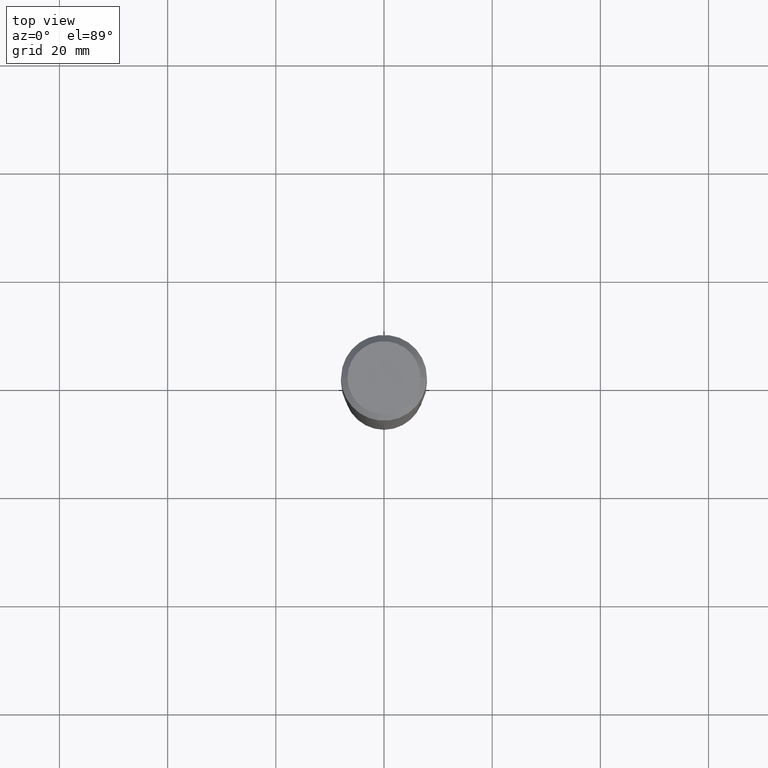
[diagram: clean part render]
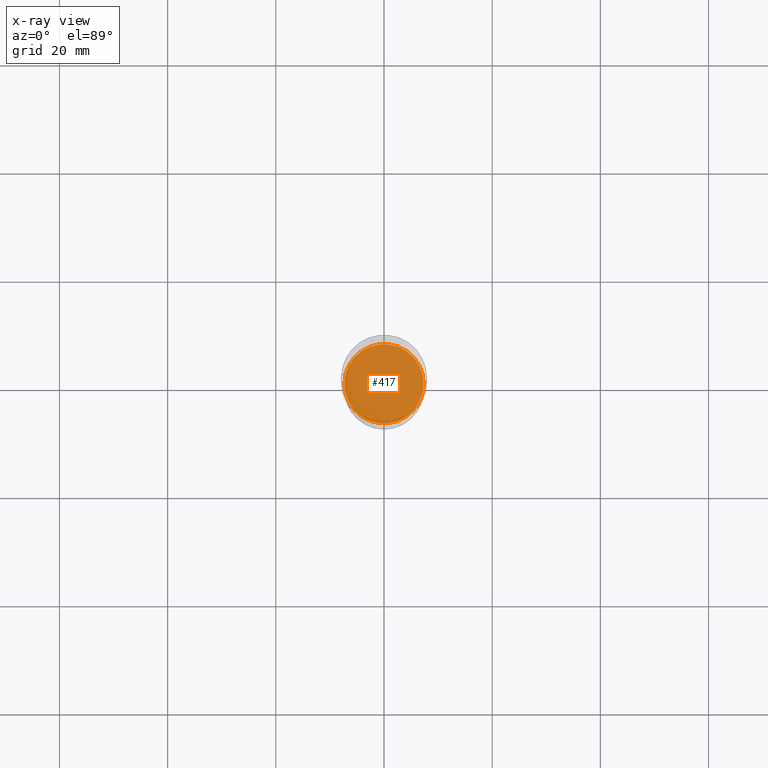
[diagram: x-ray — body ghosted, one internal face saturated and labeled with its STEP entity id]
A machine part, top view, then the same camera in x-ray: the body is ghosted and one INTERNAL B-rep face — a face not visible from any outside direction — is saturated and labeled: STEP entity #417.
In plain terms, the highlighted planar face has unit normal (-0, 0, 1).
Its self-contained STEP definition (entity closure, byte-faithful):
#9 = CARTESIAN_POINT ( 'NONE',  ( 6.304663129225902554E-29, -9.001388039671515633E-15, -2.578100000000000502 ) ) ;
#11 = DIRECTION ( 'NONE',  ( 1.000000000000000000, -6.982962677686269077E-15, 0.000000000000000000 ) ) ;
#54 = CARTESIAN_POINT ( 'NONE',  ( 2.895836394674520226E-29, -1.388302194191780780E-14, -2.578100000000000502 ) ) ;
#57 = FACE_OUTER_BOUND ( 'NONE', #135, .T. ) ;
#74 = CARTESIAN_POINT ( 'NONE',  ( -0.2885499999999999732, -6.948467748461633170E-15, -2.578100000000000502 ) ) ;
#104 = DIRECTION ( 'NONE',  ( -2.445468806185136597E-29, 3.491481338843145583E-15, 1.000000000000000000 ) ) ;
#117 = AXIS2_PLACEMENT_3D ( 'NONE', #174, #104, #249 ) ;
#119 = CARTESIAN_POINT ( 'NONE',  ( 0.2885499999999999732, -1.101632192031788842E-14, -2.578100000000000502 ) ) ;
#135 = EDGE_LOOP ( 'NONE', ( #180, #396 ) ) ;
#137 = VERTEX_POINT ( 'NONE', #119 ) ;
#149 = VERTEX_POINT ( 'NONE', #74 ) ;
#166 = DIRECTION ( 'NONE',  ( 1.000000000000000000, -6.982962677686265922E-15, 4.876176775795935793E-29 ) ) ;
#174 = CARTESIAN_POINT ( 'NONE',  ( 6.304663129225902554E-29, -9.001388039671515633E-15, -2.578100000000000502 ) ) ;
#180 = ORIENTED_EDGE ( 'NONE', *, *, #489, .F. ) ;
#191 = AXIS2_PLACEMENT_3D ( 'NONE', #54, #384, #166 ) ;
#249 = DIRECTION ( 'NONE',  ( 1.000000000000000000, -6.982962677686269077E-15, 0.000000000000000000 ) ) ;
#277 = EDGE_CURVE ( 'NONE', #149, #137, #393, .T. ) ;
#306 = DIRECTION ( 'NONE',  ( -2.445468806185136597E-29, 3.491481338843145583E-15, 1.000000000000000000 ) ) ;
#316 = PLANE ( 'NONE',  #191 ) ;
#370 = AXIS2_PLACEMENT_3D ( 'NONE', #9, #306, #11 ) ;
#384 = DIRECTION ( 'NONE',  ( -2.438088387897960049E-29, 3.491481338843145188E-15, 1.000000000000000000 ) ) ;
#393 = CIRCLE ( 'NONE', #370, 0.2885499999999999732 ) ;
#396 = ORIENTED_EDGE ( 'NONE', *, *, #277, .F. ) ;
#417 = ADVANCED_FACE ( 'NONE', ( #57 ), #316, .F. ) ;
#462 = CIRCLE ( 'NONE', #117, 0.2885499999999999732 ) ;
#489 = EDGE_CURVE ( 'NONE', #137, #149, #462, .T. ) ;